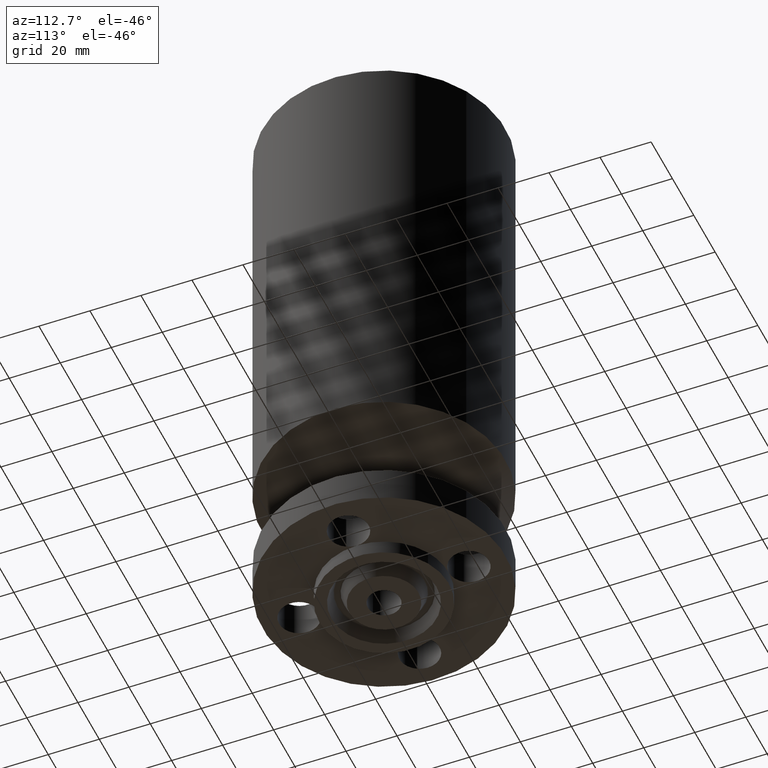
[diagram: clean part render]
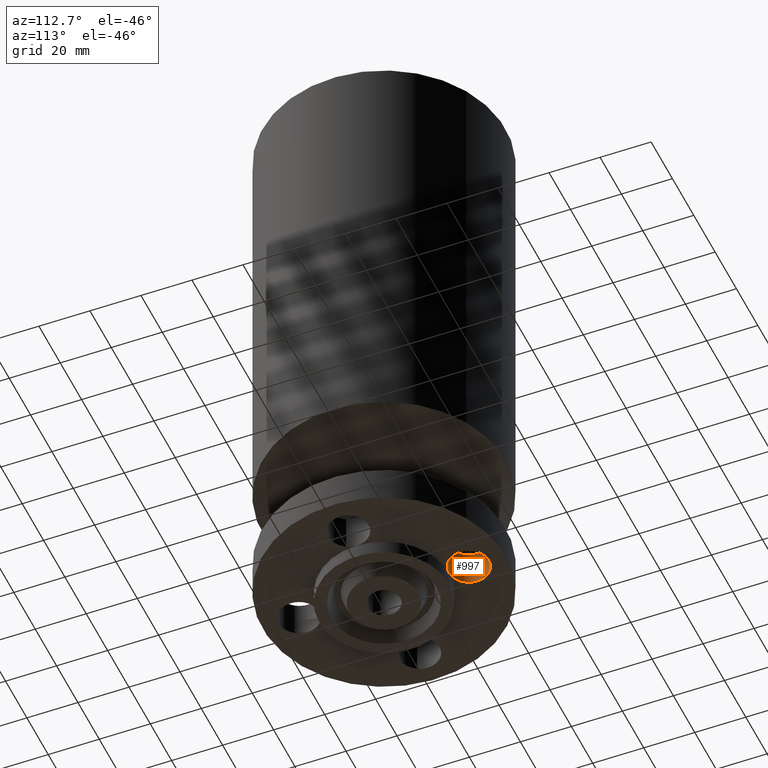
[diagram: same view with one face highlighted and labeled with its STEP entity id]
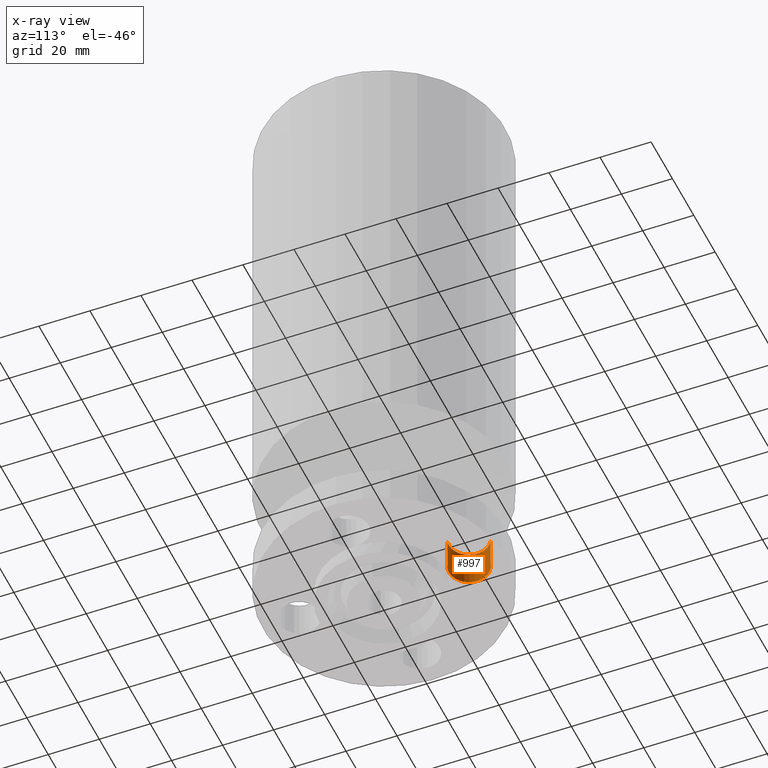
[diagram: x-ray of the same camera — body ghosted, the highlighted face saturated]
A machine part, auxiliary view. The second image highlights one B-rep face of the part: STEP entity #997.
The next image is the same camera in x-ray: the body ghosted, the highlighted face saturated — about 0% of this face is hidden behind the body in this view.
In plain terms, the highlighted cylindrical surface (edge-blend (fillet) strip) has radius 7.874 mm, axis along (0, 0, 1).
Its self-contained STEP definition (entity closure, byte-faithful):
#213=AXIS2_PLACEMENT_3D('Circle Axis2P3D',#211,#212,$) ;
#227=AXIS2_PLACEMENT_3D('Circle Axis2P3D',#225,#226,$) ;
#957=AXIS2_PLACEMENT_3D('Cylinder Axis2P3D',#954,#955,#956) ;
#987=AXIS2_PLACEMENT_3D('Circle Axis2P3D',#985,#986,$) ;
#156=CARTESIAN_POINT('Vertex',(-1.90823900527E-016,1.,0.)) ;
#211=CARTESIAN_POINT('Axis2P3D Location',(-2.09805925913E-016,1.31000000001,0.)) ;
#215=CARTESIAN_POINT('Vertex',(0.148621916968,1.03794940582,0.)) ;
#222=CARTESIAN_POINT('Vertex',(-0.148621916968,1.58205059419,2.2401153548E-016)) ;
#225=CARTESIAN_POINT('Axis2P3D Location',(-2.09805925913E-016,1.31000000001,0.)) ;
#954=CARTESIAN_POINT('Axis2P3D Location',(-2.40643096033E-016,1.31000000001,0.00393700787402)) ;
#959=CARTESIAN_POINT('Line Origine',(-0.148621916968,1.58205059419,0.280000000001)) ;
#963=CARTESIAN_POINT('Vertex',(-0.148621916968,1.58205059419,0.560000000002)) ;
#966=CARTESIAN_POINT('Line Origine',(0.148621916968,1.03794940582,0.280000000001)) ;
#970=CARTESIAN_POINT('Vertex',(0.148621916968,1.03794940582,0.560000000002)) ;
#985=CARTESIAN_POINT('Axis2P3D Location',(-2.40643096033E-016,1.31000000001,0.560000000002)) ;
#212=DIRECTION('Axis2P3D Direction',(0.,0.,-0.0393700787402)) ;
#226=DIRECTION('Axis2P3D Direction',(0.,0.,-0.0393700787402)) ;
#955=DIRECTION('Axis2P3D Direction',(0.,0.,0.0393700787402)) ;
#956=DIRECTION('Axis2P3D XDirection',(-0.0188750212049,0.0345504945626,0.)) ;
#960=DIRECTION('Vector Direction',(0.,0.,0.0393700787402)) ;
#967=DIRECTION('Vector Direction',(0.,0.,0.0393700787402)) ;
#986=DIRECTION('Axis2P3D Direction',(0.,0.,0.0393700787402)) ;
#961=VECTOR('Line Direction',#960,0.0393700787402) ;
#968=VECTOR('Line Direction',#967,0.0393700787402) ;
#991=ORIENTED_EDGE('',*,*,#972,.T.) ;
#992=ORIENTED_EDGE('',*,*,#217,.T.) ;
#993=ORIENTED_EDGE('',*,*,#229,.T.) ;
#994=ORIENTED_EDGE('',*,*,#965,.F.) ;
#995=ORIENTED_EDGE('',*,*,#989,.F.) ;
#997=ADVANCED_FACE('PartBody',(#996),#958,.F.) ;
#214=CIRCLE('generated circle',#213,0.310000000001) ;
#228=CIRCLE('generated circle',#227,0.310000000001) ;
#988=CIRCLE('generated circle',#987,0.310000000001) ;
#958=CYLINDRICAL_SURFACE('generated cylinder',#957,0.310000000001) ;
#217=EDGE_CURVE('',#216,#157,#214,.T.) ;
#229=EDGE_CURVE('',#157,#223,#228,.T.) ;
#965=EDGE_CURVE('',#964,#223,#962,.F.) ;
#972=EDGE_CURVE('',#971,#216,#969,.F.) ;
#989=EDGE_CURVE('',#971,#964,#988,.F.) ;
#990=EDGE_LOOP('',(#991,#992,#993,#994,#995)) ;
#996=FACE_OUTER_BOUND('',#990,.T.) ;
#962=LINE('Line',#959,#961) ;
#969=LINE('Line',#966,#968) ;
#157=VERTEX_POINT('',#156) ;
#216=VERTEX_POINT('',#215) ;
#223=VERTEX_POINT('',#222) ;
#964=VERTEX_POINT('',#963) ;
#971=VERTEX_POINT('',#970) ;